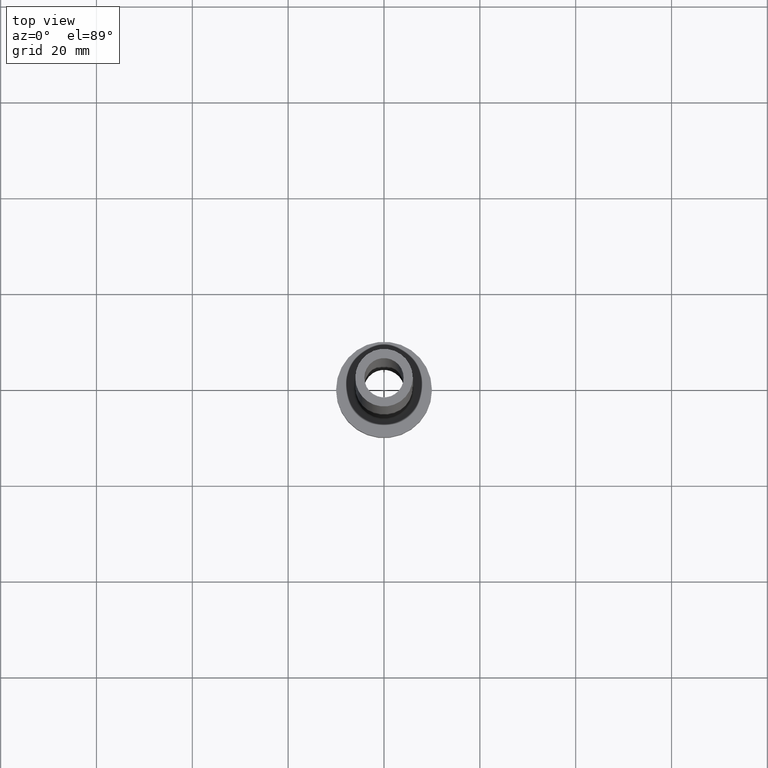
[diagram: clean part render]
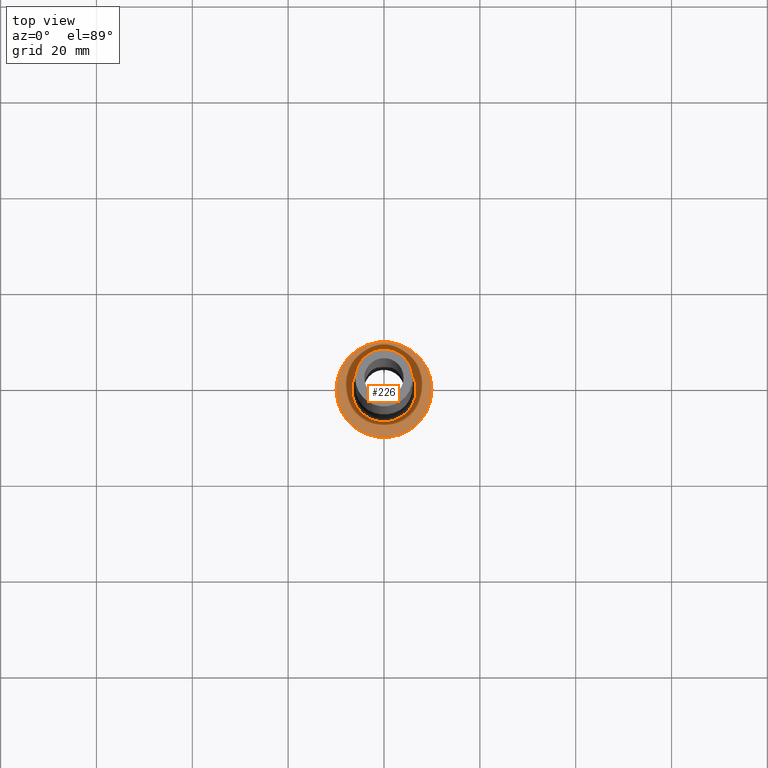
[diagram: same view with one face highlighted and labeled with its STEP entity id]
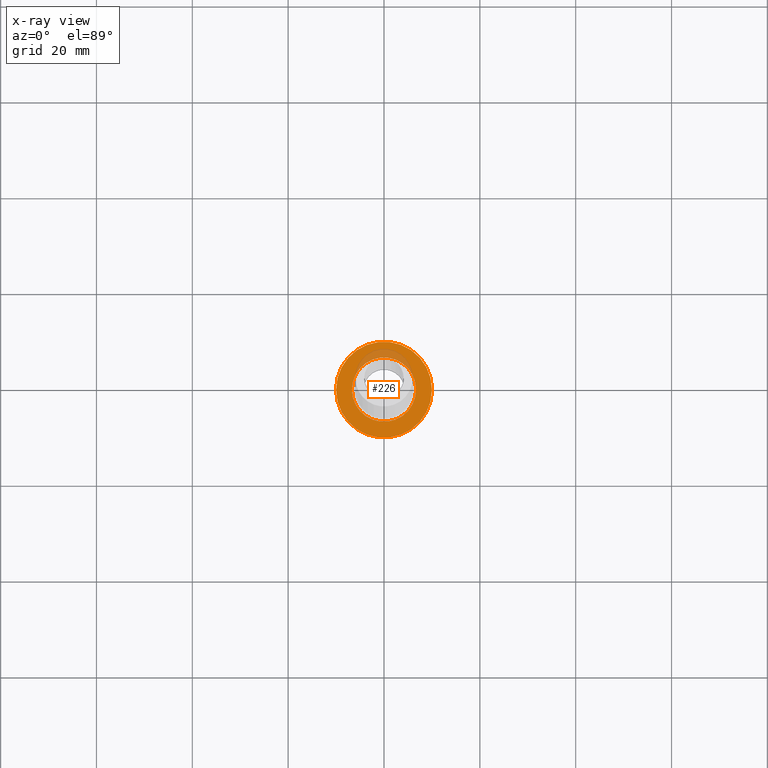
[diagram: x-ray of the same camera — body ghosted, the highlighted face saturated]
A machine part, top view. The second image highlights one B-rep face of the part: STEP entity #226.
The next image is the same camera in x-ray: the body ghosted, the highlighted face saturated — about 11% of this face is hidden behind the body in this view.
In plain terms, the highlighted planar face has unit normal (0, 0, 1).
Its self-contained STEP definition (entity closure, byte-faithful):
#37 = DIRECTION ( 'NONE',  ( 0.000000000000000000, 0.000000000000000000, 1.000000000000000000 ) ) ;
#42 = CARTESIAN_POINT ( 'NONE',  ( 10.00000000000000000, 1.224646799147353256E-15, 7.000000000000000000 ) ) ;
#59 = CIRCLE ( 'NONE', #72, 6.700000000000001066 ) ;
#72 = AXIS2_PLACEMENT_3D ( 'NONE', #107, #254, #429 ) ;
#83 = CIRCLE ( 'NONE', #194, 10.00000000000000000 ) ;
#84 = ORIENTED_EDGE ( 'NONE', *, *, #451, .T. ) ;
#86 = EDGE_CURVE ( 'NONE', #341, #160, #83, .T. ) ;
#92 = VERTEX_POINT ( 'NONE', #416 ) ;
#102 = PLANE ( 'NONE',  #139 ) ;
#107 = CARTESIAN_POINT ( 'NONE',  ( 0.000000000000000000, 0.000000000000000000, 7.000000000000000000 ) ) ;
#110 = CIRCLE ( 'NONE', #372, 6.700000000000001066 ) ;
#117 = DIRECTION ( 'NONE',  ( 1.000000000000000000, 0.000000000000000000, 0.000000000000000000 ) ) ;
#136 = FACE_BOUND ( 'NONE', #229, .T. ) ;
#139 = AXIS2_PLACEMENT_3D ( 'NONE', #141, #213, #280 ) ;
#141 = CARTESIAN_POINT ( 'NONE',  ( 0.000000000000000000, 0.000000000000000000, 7.000000000000000000 ) ) ;
#160 = VERTEX_POINT ( 'NONE', #400 ) ;
#180 = DIRECTION ( 'NONE',  ( -0.000000000000000000, -0.000000000000000000, -1.000000000000000000 ) ) ;
#189 = ORIENTED_EDGE ( 'NONE', *, *, #86, .T. ) ;
#194 = AXIS2_PLACEMENT_3D ( 'NONE', #376, #378, #269 ) ;
#199 = AXIS2_PLACEMENT_3D ( 'NONE', #291, #37, #325 ) ;
#213 = DIRECTION ( 'NONE',  ( 0.000000000000000000, 0.000000000000000000, 1.000000000000000000 ) ) ;
#226 = ADVANCED_FACE ( 'NONE', ( #136, #459 ), #102, .T. ) ;
#229 = EDGE_LOOP ( 'NONE', ( #231, #84 ) ) ;
#231 = ORIENTED_EDGE ( 'NONE', *, *, #297, .T. ) ;
#254 = DIRECTION ( 'NONE',  ( -0.000000000000000000, -0.000000000000000000, -1.000000000000000000 ) ) ;
#269 = DIRECTION ( 'NONE',  ( 1.000000000000000000, 0.000000000000000000, 0.000000000000000000 ) ) ;
#280 = DIRECTION ( 'NONE',  ( 1.000000000000000000, 0.000000000000000000, -0.000000000000000000 ) ) ;
#291 = CARTESIAN_POINT ( 'NONE',  ( 0.000000000000000000, 0.000000000000000000, 7.000000000000000000 ) ) ;
#297 = EDGE_CURVE ( 'NONE', #381, #92, #59, .T. ) ;
#325 = DIRECTION ( 'NONE',  ( 1.000000000000000000, 0.000000000000000000, 0.000000000000000000 ) ) ;
#340 = CIRCLE ( 'NONE', #199, 10.00000000000000000 ) ;
#341 = VERTEX_POINT ( 'NONE', #42 ) ;
#362 = EDGE_CURVE ( 'NONE', #160, #341, #340, .T. ) ;
#372 = AXIS2_PLACEMENT_3D ( 'NONE', #399, #180, #117 ) ;
#376 = CARTESIAN_POINT ( 'NONE',  ( 0.000000000000000000, 0.000000000000000000, 7.000000000000000000 ) ) ;
#378 = DIRECTION ( 'NONE',  ( 0.000000000000000000, 0.000000000000000000, 1.000000000000000000 ) ) ;
#381 = VERTEX_POINT ( 'NONE', #436 ) ;
#399 = CARTESIAN_POINT ( 'NONE',  ( 0.000000000000000000, 0.000000000000000000, 7.000000000000000000 ) ) ;
#400 = CARTESIAN_POINT ( 'NONE',  ( -10.00000000000000000, 0.000000000000000000, 7.000000000000000000 ) ) ;
#416 = CARTESIAN_POINT ( 'NONE',  ( -6.700000000000001066, 8.205133554287267548E-16, 7.000000000000006217 ) ) ;
#417 = ORIENTED_EDGE ( 'NONE', *, *, #362, .T. ) ;
#429 = DIRECTION ( 'NONE',  ( 1.000000000000000000, 0.000000000000000000, 0.000000000000000000 ) ) ;
#436 = CARTESIAN_POINT ( 'NONE',  ( 6.700000000000001066, 0.000000000000000000, 7.000000000000006217 ) ) ;
#437 = EDGE_LOOP ( 'NONE', ( #417, #189 ) ) ;
#451 = EDGE_CURVE ( 'NONE', #92, #381, #110, .T. ) ;
#459 = FACE_OUTER_BOUND ( 'NONE', #437, .T. ) ;